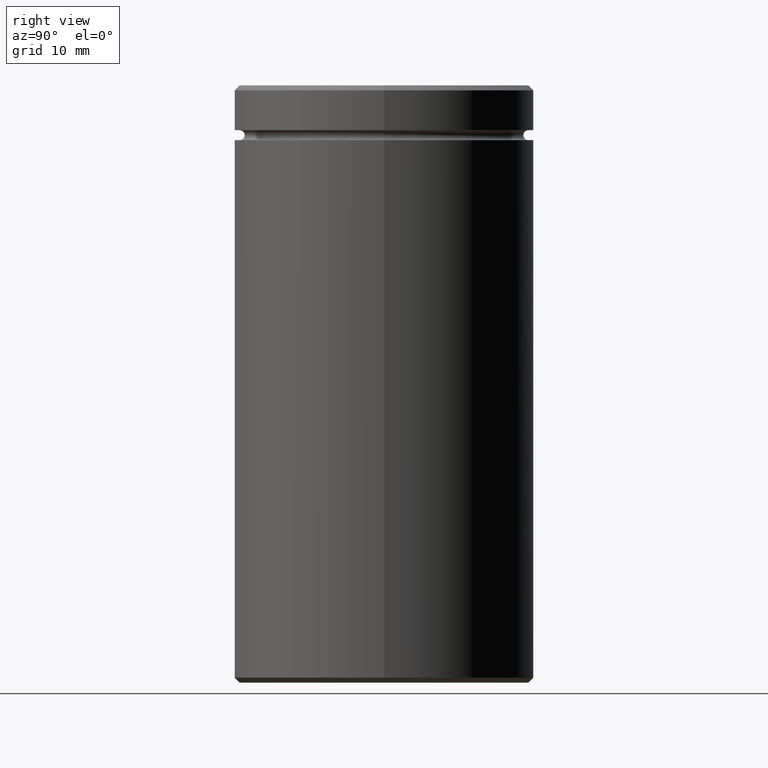
[diagram: clean part render]
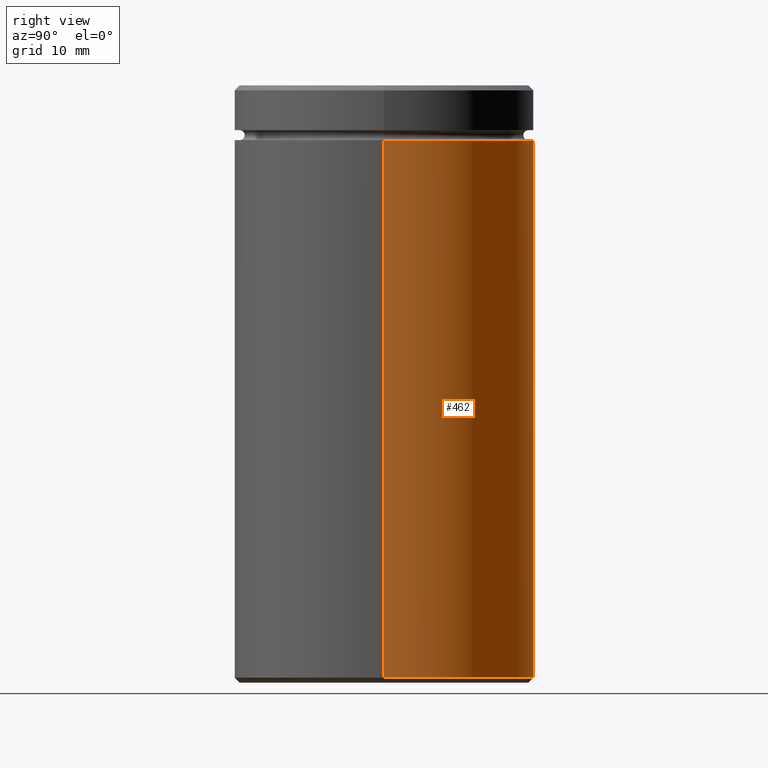
[diagram: same view with one face highlighted and labeled with its STEP entity id]
A machine part, right view. The second image highlights one B-rep face of the part: STEP entity #462.
In plain terms, the highlighted cylindrical surface (partial cylindrical patch) has radius 15 mm, axis along (-0, -0, 1).
Its self-contained STEP definition (entity closure, byte-faithful):
#3 = AXIS2_PLACEMENT_3D ( 'NONE', #92, #129, #260 ) ;
#7 = CARTESIAN_POINT ( 'NONE',  ( 15.00000000000000000, 0.000000000000000000, -59.49999999999998579 ) ) ;
#19 = CARTESIAN_POINT ( 'NONE',  ( -15.00000000000000000, 1.836970198721029589E-15, -5.500000000000000000 ) ) ;
#45 = VERTEX_POINT ( 'NONE', #209 ) ;
#92 = CARTESIAN_POINT ( 'NONE',  ( 0.000000000000000000, 0.000000000000000000, -5.500000000000000000 ) ) ;
#104 = AXIS2_PLACEMENT_3D ( 'NONE', #386, #536, #149 ) ;
#106 = VERTEX_POINT ( 'NONE', #357 ) ;
#118 = ORIENTED_EDGE ( 'NONE', *, *, #243, .F. ) ;
#129 = DIRECTION ( 'NONE',  ( -0.000000000000000000, -0.000000000000000000, 1.000000000000000000 ) ) ;
#130 = EDGE_LOOP ( 'NONE', ( #352, #152, #118, #463 ) ) ;
#136 = CARTESIAN_POINT ( 'NONE',  ( 0.000000000000000000, 0.000000000000000000, -59.49999999999998579 ) ) ;
#149 = DIRECTION ( 'NONE',  ( 1.000000000000000000, 0.000000000000000000, 0.000000000000000000 ) ) ;
#152 = ORIENTED_EDGE ( 'NONE', *, *, #175, .T. ) ;
#155 = DIRECTION ( 'NONE',  ( -0.000000000000000000, -0.000000000000000000, 1.000000000000000000 ) ) ;
#165 = AXIS2_PLACEMENT_3D ( 'NONE', #136, #298, #255 ) ;
#175 = EDGE_CURVE ( 'NONE', #45, #188, #404, .T. ) ;
#188 = VERTEX_POINT ( 'NONE', #19 ) ;
#209 = CARTESIAN_POINT ( 'NONE',  ( -15.00000000000000000, 1.836970198721029589E-15, -59.49999999999998579 ) ) ;
#215 = VECTOR ( 'NONE', #478, 1000.000000000000000 ) ;
#237 = VECTOR ( 'NONE', #155, 1000.000000000000000 ) ;
#243 = EDGE_CURVE ( 'NONE', #106, #188, #341, .T. ) ;
#255 = DIRECTION ( 'NONE',  ( -1.000000000000000000, 0.000000000000000000, 0.000000000000000000 ) ) ;
#260 = DIRECTION ( 'NONE',  ( 1.000000000000000000, 0.000000000000000000, 0.000000000000000000 ) ) ;
#274 = EDGE_CURVE ( 'NONE', #363, #45, #402, .T. ) ;
#282 = EDGE_CURVE ( 'NONE', #363, #106, #473, .T. ) ;
#298 = DIRECTION ( 'NONE',  ( -0.000000000000000000, -0.000000000000000000, 1.000000000000000000 ) ) ;
#309 = CARTESIAN_POINT ( 'NONE',  ( 15.00000000000000000, 0.000000000000000000, 0.000000000000000000 ) ) ;
#341 = CIRCLE ( 'NONE', #3, 15.00000000000000000 ) ;
#352 = ORIENTED_EDGE ( 'NONE', *, *, #274, .T. ) ;
#357 = CARTESIAN_POINT ( 'NONE',  ( 15.00000000000000000, 0.000000000000000000, -5.500000000000000000 ) ) ;
#363 = VERTEX_POINT ( 'NONE', #7 ) ;
#373 = CARTESIAN_POINT ( 'NONE',  ( -15.00000000000000000, 1.836970198721029589E-15, 0.000000000000000000 ) ) ;
#386 = CARTESIAN_POINT ( 'NONE',  ( 0.000000000000000000, 0.000000000000000000, 0.000000000000000000 ) ) ;
#402 = CIRCLE ( 'NONE', #165, 15.00000000000000000 ) ;
#404 = LINE ( 'NONE', #373, #237 ) ;
#426 = FACE_OUTER_BOUND ( 'NONE', #130, .T. ) ;
#429 = CYLINDRICAL_SURFACE ( 'NONE', #104, 15.00000000000000000 ) ;
#462 = ADVANCED_FACE ( 'NONE', ( #426 ), #429, .T. ) ;
#463 = ORIENTED_EDGE ( 'NONE', *, *, #282, .F. ) ;
#473 = LINE ( 'NONE', #309, #215 ) ;
#478 = DIRECTION ( 'NONE',  ( -0.000000000000000000, -0.000000000000000000, 1.000000000000000000 ) ) ;
#536 = DIRECTION ( 'NONE',  ( -0.000000000000000000, -0.000000000000000000, 1.000000000000000000 ) ) ;